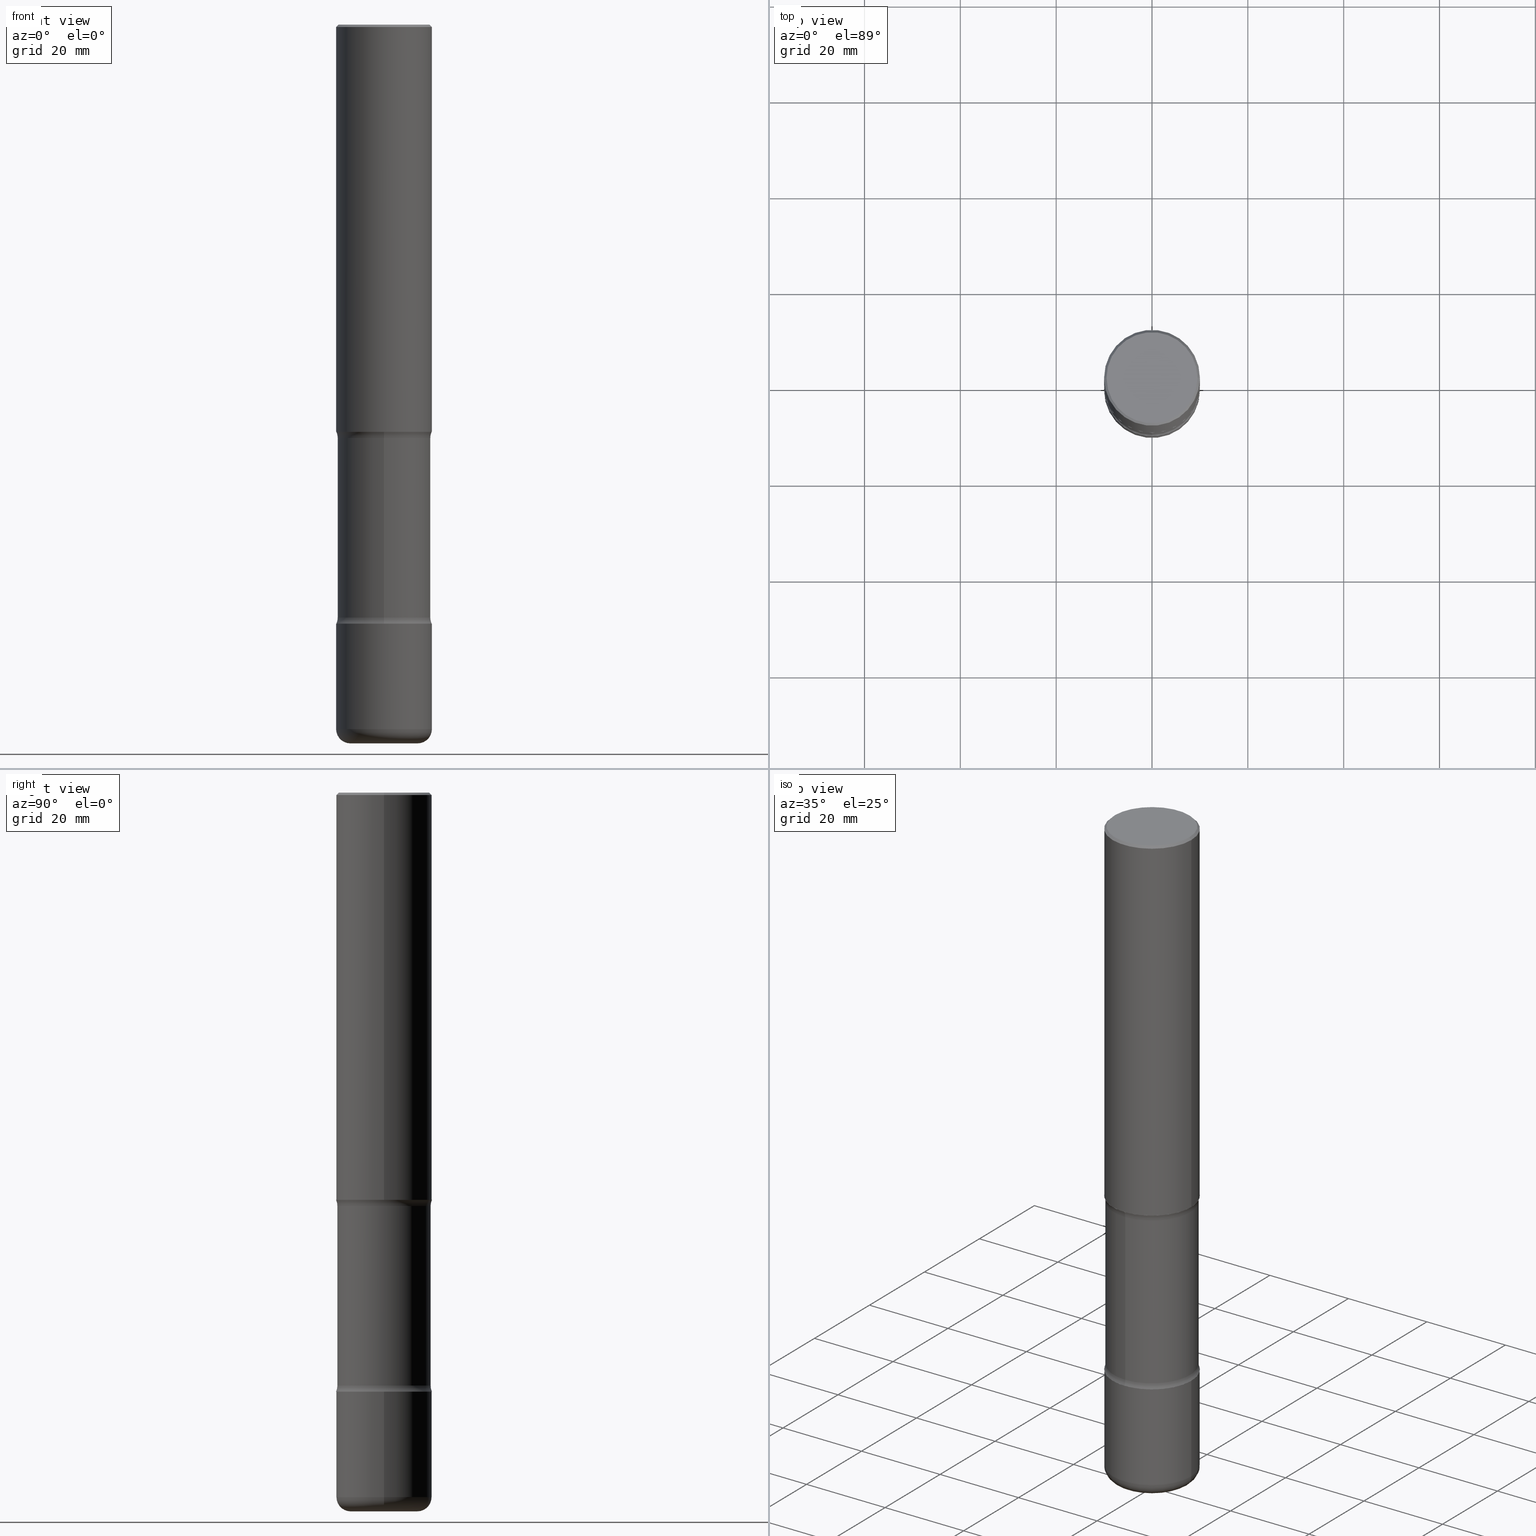
[diagram: canonical four-view strip — front | top / right | iso, engineering-drawing reading convention]
A machine part, canonical four-view strip (front | top / right | iso — engineering-drawing reading convention). The complete STEP part file that produces these views, byte-faithful:
ISO-10303-21;
HEADER;
FILE_DESCRIPTION (( 'STEP AP203' ),
    '1' );
FILE_NAME ('44740.STEP',
    '2024-03-02T02:39:27',
    ( '' ),
    ( '' ),
    'SwSTEP 2.0',
    'SolidWorks 2023',
    '' );
FILE_SCHEMA (( 'CONFIG_CONTROL_DESIGN' ));
ENDSEC;

DATA;
#1 = DIRECTION ( 'NONE',  ( -2.445468806185136597E-29, 3.491481338843145583E-15, 1.000000000000000000 ) ) ;
#2 = DIRECTION ( 'NONE',  ( -2.544829403126025960E-29, 3.349191308769819201E-15, 1.000000000000000000 ) ) ;
#3 = VERTEX_POINT ( 'NONE', #417 ) ;
#4 = DIRECTION ( 'NONE',  ( 6.982962677686265922E-15, 1.000000000000000000, -2.851987987643754903E-15 ) ) ;
#5 = EDGE_CURVE ( 'NONE', #536, #327, #84, .T. ) ;
#6 = ORIENTED_EDGE ( 'NONE', *, *, #450, .F. ) ;
#7 = ADVANCED_FACE ( 'NONE', ( #467 ), #241, .T. ) ;
#8 = EDGE_CURVE ( 'NONE', #152, #125, #71, .T. ) ;
#9 = CIRCLE ( 'NONE', #17, 0.3937000000000002164 ) ;
#10 = AXIS2_PLACEMENT_3D ( 'NONE', #237, #287, #15 ) ;
#11 = EDGE_LOOP ( 'NONE', ( #501, #98, #341, #439 ) ) ;
#12 = ORIENTED_EDGE ( 'NONE', *, *, #279, .F. ) ;
#13 = ADVANCED_FACE ( 'NONE', ( #503 ), #482, .F. ) ;
#14 = DIRECTION ( 'NONE',  ( -2.445468806185136597E-29, 3.491481338843145583E-15, 1.000000000000000000 ) ) ;
#15 = DIRECTION ( 'NONE',  ( 1.000000000000000000, 0.000000000000000000, 0.000000000000000000 ) ) ;
#16 = AXIS2_PLACEMENT_3D ( 'NONE', #427, #82, #40 ) ;
#17 = AXIS2_PLACEMENT_3D ( 'NONE', #302, #83, #170 ) ;
#18 = EDGE_LOOP ( 'NONE', ( #299, #65, #329, #361 ) ) ;
#19 = EDGE_LOOP ( 'NONE', ( #485, #205, #557, #526 ) ) ;
#20 = MANIFOLD_SOLID_BREP ( 'Body-Move/Copy2[2]', #231 ) ;
#21 = VERTEX_POINT ( 'NONE', #380 ) ;
#22 = DIRECTION ( 'NONE',  ( -0.7071067811865456854, 2.468850131082237733E-15, -0.7071067811865493491 ) ) ;
#23 = CONICAL_SURFACE ( 'NONE', #291, 0.3936999999999998279, 0.7853981633974457255 ) ;
#24 = APPROVAL_PERSON_ORGANIZATION ( #232, #92, #50 ) ;
#25 = ORIENTED_EDGE ( 'NONE', *, *, #261, .T. ) ;
#26 = MANIFOLD_SOLID_BREP ( 'Body-Move/Copy2[1]', #425 ) ;
#27 = DESIGN_CONTEXT ( 'detailed design', #118, 'design' ) ;
#28 = ADVANCED_FACE ( 'NONE', ( #539 ), #549, .F. ) ;
#29 = PERSON_AND_ORGANIZATION ( #436, #307 ) ;
#30 = ADVANCED_FACE ( 'NONE', ( #335 ), #338, .F. ) ;
#31 = CARTESIAN_POINT ( 'NONE',  ( 8.027043744955427647E-29, -1.190797149166417528E-14, -3.346399999999999597 ) ) ;
#32 = EDGE_LOOP ( 'NONE', ( #419, #455, #76, #323 ) ) ;
#33 = DIRECTION ( 'NONE',  ( -2.438088387897960049E-29, 3.491481338843145188E-15, 1.000000000000000000 ) ) ;
#34 = ORIENTED_EDGE ( 'NONE', *, *, #60, .F. ) ;
#35 = AXIS2_PLACEMENT_3D ( 'NONE', #221, #227, #4 ) ;
#36 = APPROVAL_PERSON_ORGANIZATION ( #249, #160, #377 ) ;
#37 = COORDINATED_UNIVERSAL_TIME_OFFSET ( 5, 0, .BEHIND. ) ;
#38 = DIRECTION ( 'NONE',  ( 2.445468806185136597E-29, -3.491481338843145583E-15, -1.000000000000000000 ) ) ;
#39 = DIRECTION ( 'NONE',  ( 1.000000000000000000, -6.982962677686269077E-15, 0.000000000000000000 ) ) ;
#40 = DIRECTION ( 'NONE',  ( 6.982962677686266711E-15, 1.000000000000000000, -3.349191308769819201E-15 ) ) ;
#41 = CARTESIAN_POINT ( 'NONE',  ( 1.453951667049523885E-28, -2.047888696993701883E-14, -5.905499999999999972 ) ) ;
#42 = DIRECTION ( 'NONE',  ( 2.544829403126025960E-29, -3.349191308769819201E-15, -1.000000000000000000 ) ) ;
#43 = CARTESIAN_POINT ( 'NONE',  ( -2.087702828670439639E-46, 2.980686340760894400E-32, 8.537024980200822558E-18 ) ) ;
#44 = CYLINDRICAL_SURFACE ( 'NONE', #326, 0.3831500000000001016 ) ;
#45 = LINE ( 'NONE', #472, #358 ) ;
#46 = DATE_TIME_ROLE ( 'classification_date' ) ;
#47 = FACE_OUTER_BOUND ( 'NONE', #140, .T. ) ;
#48 = CIRCLE ( 'NONE', #177, 0.3936999999999998279 ) ;
#49 = CARTESIAN_POINT ( 'NONE',  ( -3.486162057567523591E-15, -0.5081500000000123141, -3.396661292263528864 ) ) ;
#50 = APPROVAL_ROLE ( '' ) ;
#51 = LINE ( 'NONE', #226, #404 ) ;
#52 = DIRECTION ( 'NONE',  ( -2.445468806185136597E-29, 3.491481338843145583E-15, 1.000000000000000000 ) ) ;
#53 = EDGE_CURVE ( 'NONE', #399, #308, #57, .T. ) ;
#54 = ORIENTED_EDGE ( 'NONE', *, *, #210, .F. ) ;
#55 = DIRECTION ( 'NONE',  ( 6.982962677686266711E-15, 1.000000000000000000, -3.349191308769819201E-15 ) ) ;
#56 = ORIENTED_EDGE ( 'NONE', *, *, #468, .T. ) ;
#57 = CIRCLE ( 'NONE', #489, 0.3937000000000002720 ) ;
#58 = AXIS2_PLACEMENT_3D ( 'NONE', #383, #1, #431 ) ;
#59 = CIRCLE ( 'NONE', #246, 0.3937000000000002720 ) ;
#60 = EDGE_CURVE ( 'NONE', #543, #301, #268, .T. ) ;
#61 = ORIENTED_EDGE ( 'NONE', *, *, #8, .F. ) ;
#62 = CARTESIAN_POINT ( 'NONE',  ( 1.415290616891585994E-28, -2.020659910042081941E-14, -5.787399999999999878 ) ) ;
#63 = CC_DESIGN_PERSON_AND_ORGANIZATION_ASSIGNMENT ( #29, #461, ( #538 ) ) ;
#64 = CC_DESIGN_PERSON_AND_ORGANIZATION_ASSIGNMENT ( #547, #167, ( #438 ) ) ;
#65 = ORIENTED_EDGE ( 'NONE', *, *, #515, .T. ) ;
#66 = PRODUCT_DEFINITION_SHAPE ( 'NONE', 'NONE',  #447 ) ;
#67 = ORIENTED_EDGE ( 'NONE', *, *, #515, .F. ) ;
#68 = CALENDAR_DATE ( 2024, 1, 3 ) ;
#69 = CYLINDRICAL_SURFACE ( 'NONE', #166, 0.3937000000000002720 ) ;
#70 = ORIENTED_EDGE ( 'NONE', *, *, #468, .F. ) ;
#71 = LINE ( 'NONE', #79, #187 ) ;
#72 = AXIS2_PLACEMENT_3D ( 'NONE', #348, #397, #316 ) ;
#73 = ADVANCED_FACE ( 'NONE', ( #136 ), #518, .F. ) ;
#74 = CIRCLE ( 'NONE', #278, 0.3937000000000002720 ) ;
#75 = EDGE_CURVE ( 'NONE', #21, #308, #153, .T. ) ;
#76 = ORIENTED_EDGE ( 'NONE', *, *, #150, .T. ) ;
#77 = SECURITY_CLASSIFICATION_LEVEL ( 'unclassified' ) ;
#78 = CARTESIAN_POINT ( 'NONE',  ( -2.664788934784327650E-15, -0.3831500000000122585, -3.396661292263528864 ) ) ;
#79 = CARTESIAN_POINT ( 'NONE',  ( -0.3936999999999998279, 2.679362779428218735E-15, -0.02000000000000008715 ) ) ;
#80 = DATE_TIME_ROLE ( 'creation_date' ) ;
#81 = DIRECTION ( 'NONE',  ( -2.445468806185136597E-29, 3.491481338843145583E-15, 1.000000000000000000 ) ) ;
#82 = DIRECTION ( 'NONE',  ( 2.544829403126025960E-29, -3.349191308769819201E-15, -1.000000000000000000 ) ) ;
#83 = DIRECTION ( 'NONE',  ( -2.445468806185136597E-29, 3.491481338843145583E-15, 1.000000000000000000 ) ) ;
#84 = LINE ( 'NONE', #203, #85 ) ;
#85 = VECTOR ( 'NONE', #115, 39.37007874015748143 ) ;
#86 = EDGE_LOOP ( 'NONE', ( #67, #412, #459, #110 ) ) ;
#87 = CIRCLE ( 'NONE', #35, 0.3831500000000002126 ) ;
#88 = CC_DESIGN_APPROVAL ( #92, ( #438 ) ) ;
#89 = CYLINDRICAL_SURFACE ( 'NONE', #179, 0.3831500000000001016 ) ;
#90 = CARTESIAN_POINT ( 'NONE',  ( 1.444171603492632270E-28, -2.061894304653819197E-14, -5.905499999999999972 ) ) ;
#91 = CARTESIAN_POINT ( 'NONE',  ( 1.190673467460695127E-28, -1.701394328149833235E-14, -4.870938707736469198 ) ) ;
#92 = APPROVAL ( #314, 'UNSPECIFIED' ) ;
#93 = EDGE_CURVE ( 'NONE', #410, #395, #443, .T. ) ;
#94 = DIRECTION ( 'NONE',  ( -1.000000000000000000, 6.982962677686265922E-15, -4.876176775795935793E-29 ) ) ;
#95 = FACE_OUTER_BOUND ( 'NONE', #201, .T. ) ;
#96 = DIRECTION ( 'NONE',  ( -1.000000000000000000, 6.982962677686265922E-15, -4.883557194083112340E-29 ) ) ;
#97 = CARTESIAN_POINT ( 'NONE',  ( 4.890937612370294178E-31, -6.982962677686321191E-17, -0.02000000000000008715 ) ) ;
#98 = ORIENTED_EDGE ( 'NONE', *, *, #219, .T. ) ;
#99 = VECTOR ( 'NONE', #435, 39.37007874015748143 ) ;
#100 = AXIS2_PLACEMENT_3D ( 'NONE', #174, #267, #251 ) ;
#101 =( LENGTH_UNIT ( ) NAMED_UNIT ( * ) SI_UNIT ( $, .METRE. ) );
#102 = CARTESIAN_POINT ( 'NONE',  ( -0.3736999999999998101, 2.644447966039787875E-15, 8.537024980182450727E-18 ) ) ;
#103 = ORIENTED_EDGE ( 'NONE', *, *, #93, .T. ) ;
#104 = CARTESIAN_POINT ( 'NONE',  ( 1.191172866660927853E-28, -1.700679160071063283E-14, -4.870938707736470086 ) ) ;
#105 = EDGE_LOOP ( 'NONE', ( #360, #154 ) ) ;
#106 = AXIS2_PLACEMENT_3D ( 'NONE', #180, #477, #343 ) ;
#107 = CARTESIAN_POINT ( 'NONE',  ( 1.415290616891585994E-28, -2.020659910042081941E-14, -5.787399999999999878 ) ) ;
#108 = APPROVAL_ROLE ( '' ) ;
#109 = EDGE_CURVE ( 'NONE', #536, #117, #305, .T. ) ;
#110 = ORIENTED_EDGE ( 'NONE', *, *, #182, .T. ) ;
#111 = AXIS2_PLACEMENT_3D ( 'NONE', #262, #141, #315 ) ;
#112 = LOCAL_TIME ( 21, 39, 27.00000000000000000, #114 ) ;
#113 = ORIENTED_EDGE ( 'NONE', *, *, #408, .T. ) ;
#114 = COORDINATED_UNIVERSAL_TIME_OFFSET ( 5, 0, .BEHIND. ) ;
#115 = DIRECTION ( 'NONE',  ( 2.544829403126025960E-29, -3.349191308769819201E-15, -1.000000000000000000 ) ) ;
#116 = ADVANCED_FACE ( 'NONE', ( #475 ), #238, .T. ) ;
#117 = VERTEX_POINT ( 'NONE', #556 ) ;
#118 = APPLICATION_CONTEXT ( 'configuration controlled 3d designs of mechanical parts and assemblies' ) ;
#119 = PRODUCT ( '44740', '44740', '', ( #365 ) ) ;
#120 = CARTESIAN_POINT ( 'NONE',  ( 8.154950159346770172E-29, -1.207630617488073123E-14, -3.396661292263530196 ) ) ;
#121 = DIRECTION ( 'NONE',  ( 2.438088387897960049E-29, -3.491481338843145188E-15, -1.000000000000000000 ) ) ;
#122 = AXIS2_PLACEMENT_3D ( 'NONE', #107, #499, #458 ) ;
#123 = DIMENSIONAL_EXPONENTS ( 1.000000000000000000, 0.000000000000000000, 0.000000000000000000, 0.000000000000000000, 0.000000000000000000, 0.000000000000000000, 0.000000000000000000 ) ;
#124 = CARTESIAN_POINT ( 'NONE',  ( 2.749192406205204307E-15, 0.3936999999999830080, -4.921200000000000685 ) ) ;
#125 = VERTEX_POINT ( 'NONE', #131 ) ;
#126 = DIRECTION ( 'NONE',  ( 1.000000000000000000, -6.860497997771530774E-15, 4.842541429922941804E-29 ) ) ;
#127 = ORIENTED_EDGE ( 'NONE', *, *, #449, .F. ) ;
#128 = APPROVAL_DATE_TIME ( #457, #160 ) ;
#129 = FACE_OUTER_BOUND ( 'NONE', #225, .T. ) ;
#130 = CARTESIAN_POINT ( 'NONE',  ( 1.203464108899829379E-28, -1.718227796471488830E-14, -4.921199999999999797 ) ) ;
#131 = CARTESIAN_POINT ( 'NONE',  ( -0.3936999999999998279, 2.679362779428218735E-15, -0.02000000000000008715 ) ) ;
#132 = CIRCLE ( 'NONE', #106, 0.3831500000000000461 ) ;
#133 = AXIS2_PLACEMENT_3D ( 'NONE', #429, #474, #298 ) ;
#134 = CARTESIAN_POINT ( 'NONE',  ( -0.2756000000000003447, -1.824834332066598125E-14, -5.787399999999999878 ) ) ;
#135 = CARTESIAN_POINT ( 'NONE',  ( 8.183516813017940998E-29, -1.168389315230470136E-14, -3.346399999999999597 ) ) ;
#136 = FACE_OUTER_BOUND ( 'NONE', #359, .T. ) ;
#137 = DIRECTION ( 'NONE',  ( -6.982962677686265133E-15, -1.000000000000000000, 0.000000000000000000 ) ) ;
#138 = DIRECTION ( 'NONE',  ( 1.000000000000000000, -6.982962677686261977E-15, 0.000000000000000000 ) ) ;
#139 = EDGE_CURVE ( 'NONE', #446, #543, #200, .T. ) ;
#140 = EDGE_LOOP ( 'NONE', ( #542, #529, #355, #6 ) ) ;
#141 = DIRECTION ( 'NONE',  ( -2.445468806185136597E-29, 3.491481338843145583E-15, 1.000000000000000000 ) ) ;
#142 = DIRECTION ( 'NONE',  ( -2.445468806185136597E-29, 3.491481338843145583E-15, 1.000000000000000000 ) ) ;
#143 = ORIENTED_EDGE ( 'NONE', *, *, #372, .T. ) ;
#144 = CARTESIAN_POINT ( 'NONE',  ( -0.3937000000000002720, -1.589703178188033670E-14, -4.921199999999999797 ) ) ;
#145 = CIRCLE ( 'NONE', #451, 0.3936999999999998279 ) ;
#146 = DIRECTION ( 'NONE',  ( -2.445468806185136597E-29, 3.491481338843145583E-15, 1.000000000000000000 ) ) ;
#147 = VERTEX_POINT ( 'NONE', #265 ) ;
#148 = AXIS2_PLACEMENT_3D ( 'NONE', #424, #440, #137 ) ;
#149 = CARTESIAN_POINT ( 'NONE',  ( -0.3937000000000003830, -1.740919234973330226E-14, -5.787399999999999878 ) ) ;
#150 = EDGE_CURVE ( 'NONE', #410, #3, #415, .T. ) ;
#151 = DATE_AND_TIME ( #534, #318 ) ;
#152 = VERTEX_POINT ( 'NONE', #102 ) ;
#153 = CIRCLE ( 'NONE', #470, 0.1181000000000000383 ) ;
#154 = ORIENTED_EDGE ( 'NONE', *, *, #139, .F. ) ;
#155 = CIRCLE ( 'NONE', #111, 0.3736999999999998101 ) ;
#156 = EDGE_LOOP ( 'NONE', ( #290, #367, #498, #34 ) ) ;
#157 = PERSON_AND_ORGANIZATION_ROLE ( 'design_owner' ) ;
#158 = ADVANCED_FACE ( 'NONE', ( #320 ), #504, .F. ) ;
#159 = CARTESIAN_POINT ( 'NONE',  ( 1.203464108899829379E-28, -1.718227796471488830E-14, -4.921199999999999797 ) ) ;
#160 = APPROVAL ( #420, 'UNSPECIFIED' ) ;
#161 = CARTESIAN_POINT ( 'NONE',  ( 1.453951667049523885E-28, -2.047888696993701883E-14, -5.905499999999999972 ) ) ;
#162 = ORIENTED_EDGE ( 'NONE', *, *, #494, .T. ) ;
#163 = CC_DESIGN_DATE_AND_TIME_ASSIGNMENT ( #275, #46, ( #438 ) ) ;
#164 = DIRECTION ( 'NONE',  ( 1.000000000000000000, -6.982962677686266711E-15, 4.876176775795935793E-29 ) ) ;
#165 = ORIENTED_EDGE ( 'NONE', *, *, #8, .T. ) ;
#166 = AXIS2_PLACEMENT_3D ( 'NONE', #387, #250, #164 ) ;
#167 = PERSON_AND_ORGANIZATION_ROLE ( 'classification_officer' ) ;
#168 = CARTESIAN_POINT ( 'NONE',  ( 0.3937000000000002164, -1.443308555850978615E-14, -3.346399999999999597 ) ) ;
#169 = ORIENTED_EDGE ( 'NONE', *, *, #297, .T. ) ;
#170 = DIRECTION ( 'NONE',  ( 1.000000000000000000, -6.982962677686269866E-15, 0.000000000000000000 ) ) ;
#171 = EDGE_CURVE ( 'NONE', #308, #147, #45, .T. ) ;
#172 = DIRECTION ( 'NONE',  ( 1.000000000000000000, -6.982962677686266711E-15, 0.000000000000000000 ) ) ;
#173 = DIRECTION ( 'NONE',  ( 6.982962677686266711E-15, 1.000000000000000000, -2.851987987643756086E-15 ) ) ;
#174 = CARTESIAN_POINT ( 'NONE',  ( 1.203464108899829379E-28, -1.718227796471488830E-14, -4.921199999999999797 ) ) ;
#175 = DIRECTION ( 'NONE',  ( 6.982962677686265922E-15, 1.000000000000000000, -2.775563112689113145E-15 ) ) ;
#176 = AXIS2_PLACEMENT_3D ( 'NONE', #513, #345, #55 ) ;
#177 = AXIS2_PLACEMENT_3D ( 'NONE', #271, #52, #388 ) ;
#178 = CALENDAR_DATE ( 2024, 1, 3 ) ;
#179 = AXIS2_PLACEMENT_3D ( 'NONE', #41, #386, #514 ) ;
#180 = CARTESIAN_POINT ( 'NONE',  ( 1.190673467460695127E-28, -1.701394328149833235E-14, -4.870938707736469198 ) ) ;
#181 = CYLINDRICAL_SURFACE ( 'NONE', #491, 0.3937000000000000499 ) ;
#182 = EDGE_CURVE ( 'NONE', #395, #327, #437, .T. ) ;
#183 = DIRECTION ( 'NONE',  ( 1.000000000000000000, -6.982962677686266711E-15, 4.876212485538977921E-29 ) ) ;
#184 = CARTESIAN_POINT ( 'NONE',  ( 1.415290616891585994E-28, -2.020659910042081941E-14, -5.787399999999999878 ) ) ;
#185 = FACE_OUTER_BOUND ( 'NONE', #156, .T. ) ;
#186 = ORIENTED_EDGE ( 'NONE', *, *, #93, .F. ) ;
#187 = VECTOR ( 'NONE', #22, 39.37007874015748143 ) ;
#188 = CIRCLE ( 'NONE', #277, 0.3937000000000002720 ) ;
#189 = AXIS2_PLACEMENT_3D ( 'NONE', #555, #126, #502 ) ;
#190 = CARTESIAN_POINT ( 'NONE',  ( -2.700978061722533318E-15, -0.3937000000000174249, -4.921199999999998909 ) ) ;
#191 = ORIENTED_EDGE ( 'NONE', *, *, #210, .T. ) ;
#192 = DIRECTION ( 'NONE',  ( 1.000000000000000000, -6.982962677686263555E-15, 0.000000000000000000 ) ) ;
#193 = CLOSED_SHELL ( 'NONE', ( #407, #236, #30, #13, #531, #73, #158, #366 ) ) ;
#194 = AXIS2_PLACEMENT_3D ( 'NONE', #487, #522, #138 ) ;
#195 = AXIS2_PLACEMENT_3D ( 'NONE', #120, #292, #204 ) ;
#196 = EDGE_CURVE ( 'NONE', #301, #125, #48, .T. ) ;
#197 =( NAMED_UNIT ( * ) PLANE_ANGLE_UNIT ( ) SI_UNIT ( $, .RADIAN. ) );
#198 = EDGE_LOOP ( 'NONE', ( #411, #248 ) ) ;
#199 = ORIENTED_EDGE ( 'NONE', *, *, #530, .T. ) ;
#200 = CIRCLE ( 'NONE', #72, 0.3937000000000002164 ) ;
#201 = EDGE_LOOP ( 'NONE', ( #127, #368 ) ) ;
#202 = CIRCLE ( 'NONE', #516, 0.3937000000000002720 ) ;
#203 = CARTESIAN_POINT ( 'NONE',  ( -2.628599807846017064E-15, -0.3831500000000205852, -5.905499999999998195 ) ) ;
#204 = DIRECTION ( 'NONE',  ( 6.982962677686265922E-15, 1.000000000000000000, -2.851987987643754903E-15 ) ) ;
#205 = ORIENTED_EDGE ( 'NONE', *, *, #53, .T. ) ;
#206 = DIRECTION ( 'NONE',  ( -2.445468806185136877E-29, 3.491481338843145188E-15, 1.000000000000000000 ) ) ;
#207 = PERSON_AND_ORGANIZATION ( #436, #307 ) ;
#208 = CARTESIAN_POINT ( 'NONE',  ( -0.3937000000000002720, 2.797406750687516364E-15, -1.936584745033358137E-29 ) ) ;
#209 = ORIENTED_EDGE ( 'NONE', *, *, #280, .F. ) ;
#210 = EDGE_CURVE ( 'NONE', #536, #410, #87, .T. ) ;
#211 = AXIS2_PLACEMENT_3D ( 'NONE', #406, #229, #400 ) ;
#212 = CYLINDRICAL_SURFACE ( 'NONE', #58, 0.3937000000000000499 ) ;
#213 = DIRECTION ( 'NONE',  ( 2.438088387897960049E-29, -3.491481338843145188E-15, -1.000000000000000000 ) ) ;
#214 = EDGE_LOOP ( 'NONE', ( #56, #162 ) ) ;
#215 = DIRECTION ( 'NONE',  ( 6.982962677686265922E-15, 1.000000000000000000, -2.775563112689113145E-15 ) ) ;
#216 = DIRECTION ( 'NONE',  ( -2.445468806185136877E-29, 3.491481338843145188E-15, 1.000000000000000000 ) ) ;
#217 = ADVANCED_FACE ( 'NONE', ( #185 ), #181, .T. ) ;
#218 = ORIENTED_EDGE ( 'NONE', *, *, #476, .T. ) ;
#219 = EDGE_CURVE ( 'NONE', #442, #21, #244, .T. ) ;
#220 = DIRECTION ( 'NONE',  ( -1.000000000000000000, 7.105427357601001859E-15, 0.000000000000000000 ) ) ;
#221 = CARTESIAN_POINT ( 'NONE',  ( 8.154950159346770172E-29, -1.207630617488073123E-14, -3.396661292263530196 ) ) ;
#222 = AXIS2_PLACEMENT_3D ( 'NONE', #97, #258, #466 ) ;
#223 = DIRECTION ( 'NONE',  ( -2.445468806185136597E-29, 3.491481338843145583E-15, 1.000000000000000000 ) ) ;
#224 = DIRECTION ( 'NONE',  ( -6.982962677686266711E-15, -1.000000000000000000, 3.491481338843145583E-15 ) ) ;
#225 = EDGE_LOOP ( 'NONE', ( #143, #230 ) ) ;
#226 = CARTESIAN_POINT ( 'NONE',  ( -0.3937000000000000499, 2.797406750687514786E-15, -1.936584745033356735E-29 ) ) ;
#227 = DIRECTION ( 'NONE',  ( 2.544829403126025960E-29, -3.349191308769819201E-15, -1.000000000000000000 ) ) ;
#228 = APPLICATION_CONTEXT ( 'configuration controlled 3d designs of mechanical parts and assemblies' ) ;
#229 = DIRECTION ( 'NONE',  ( 2.544829403126025960E-29, -3.349191308769819201E-15, -1.000000000000000000 ) ) ;
#230 = ORIENTED_EDGE ( 'NONE', *, *, #392, .T. ) ;
#231 = CLOSED_SHELL ( 'NONE', ( #217, #295, #324, #289, #509, #325 ) ) ;
#232 = PERSON_AND_ORGANIZATION ( #436, #307 ) ;
#233 = TOROIDAL_SURFACE ( 'NONE', #211, 0.5081500000000001016, 0.1249999999999999306 ) ;
#234 = LOCAL_TIME ( 21, 39, 27.00000000000000000, #37 ) ;
#235 = DIRECTION ( 'NONE',  ( 6.982962677686265922E-15, 1.000000000000000000, -2.775563112689114723E-15 ) ) ;
#236 = ADVANCED_FACE ( 'NONE', ( #312 ), #233, .F. ) ;
#237 = CARTESIAN_POINT ( 'NONE',  ( 0.000000000000000000, 0.000000000000000000, 0.000000000000000000 ) ) ;
#238 = TOROIDAL_SURFACE ( 'NONE', #445, 0.2756000000000003447, 0.1180999999999999966 ) ;
#239 = VECTOR ( 'NONE', #517, 39.37007874015748143 ) ;
#240 = DATE_AND_TIME ( #68, #112 ) ;
#241 = CYLINDRICAL_SURFACE ( 'NONE', #545, 0.3937000000000002720 ) ;
#242 = APPROVAL ( #331, 'UNSPECIFIED' ) ;
#243 = AXIS2_PLACEMENT_3D ( 'NONE', #49, #385, #523 ) ;
#244 = CIRCLE ( 'NONE', #194, 0.2756000000000001782 ) ;
#245 = VERTEX_POINT ( 'NONE', #190 ) ;
#246 = AXIS2_PLACEMENT_3D ( 'NONE', #541, #81, #421 ) ;
#247 = LINE ( 'NONE', #208, #239 ) ;
#248 = ORIENTED_EDGE ( 'NONE', *, *, #219, .F. ) ;
#249 = PERSON_AND_ORGANIZATION ( #436, #307 ) ;
#250 = DIRECTION ( 'NONE',  ( -2.445468806185136597E-29, 3.491481338843145583E-15, 1.000000000000000000 ) ) ;
#251 = DIRECTION ( 'NONE',  ( 6.982962677686265922E-15, 1.000000000000000000, -2.775563112689114723E-15 ) ) ;
#252 = CARTESIAN_POINT ( 'NONE',  ( 4.890937612370294178E-31, -6.982962677686321191E-17, -0.02000000000000008715 ) ) ;
#253 = EDGE_LOOP ( 'NONE', ( #54, #527, #274, #266 ) ) ;
#254 = AXIS2_PLACEMENT_3D ( 'NONE', #311, #2, #553 ) ;
#255 = AXIS2_PLACEMENT_3D ( 'NONE', #104, #433, #560 ) ;
#256 = AXIS2_PLACEMENT_3D ( 'NONE', #135, #33, #310 ) ;
#257 = COORDINATED_UNIVERSAL_TIME_OFFSET ( 5, 0, .BEHIND. ) ;
#258 = DIRECTION ( 'NONE',  ( 2.445468806185136597E-29, -3.491481338843145583E-15, -1.000000000000000000 ) ) ;
#259 = CARTESIAN_POINT ( 'NONE',  ( 1.203464108899829379E-28, -1.718227796471488830E-14, -4.921199999999999797 ) ) ;
#260 = DIRECTION ( 'NONE',  ( 1.000000000000000000, -6.982962677686263555E-15, 0.000000000000000000 ) ) ;
#261 = EDGE_CURVE ( 'NONE', #537, #301, #448, .T. ) ;
#262 = CARTESIAN_POINT ( 'NONE',  ( -2.087702828670439639E-46, 2.980686340760894400E-32, 8.537024980200822558E-18 ) ) ;
#263 = CC_DESIGN_DATE_AND_TIME_ASSIGNMENT ( #240, #80, ( #447 ) ) ;
#264 = DIRECTION ( 'NONE',  ( -2.445468806185136597E-29, 3.491481338843145583E-15, 1.000000000000000000 ) ) ;
#265 = CARTESIAN_POINT ( 'NONE',  ( 0.3937000000000002720, -1.993147037091997467E-14, -4.921199999999999797 ) ) ;
#266 = ORIENTED_EDGE ( 'NONE', *, *, #150, .F. ) ;
#267 = DIRECTION ( 'NONE',  ( 2.544829403126025960E-29, -3.349191308769819201E-15, -1.000000000000000000 ) ) ;
#268 = LINE ( 'NONE', #304, #398 ) ;
#269 = CONICAL_SURFACE ( 'NONE', #222, 0.3936999999999998279, 0.7853981633974457255 ) ;
#270 = ORIENTED_EDGE ( 'NONE', *, *, #171, .F. ) ;
#271 = CARTESIAN_POINT ( 'NONE',  ( 4.890937612370294178E-31, -6.982962677686321191E-17, -0.02000000000000008715 ) ) ;
#272 = ORIENTED_EDGE ( 'NONE', *, *, #261, .F. ) ;
#273 = CARTESIAN_POINT ( 'NONE',  ( 0.2756000000000003447, -2.213110361439115752E-14, -5.787399999999999878 ) ) ;
#274 = ORIENTED_EDGE ( 'NONE', *, *, #319, .T. ) ;
#275 = DATE_AND_TIME ( #550, #234 ) ;
#276 = ORIENTED_EDGE ( 'NONE', *, *, #75, .F. ) ;
#277 = AXIS2_PLACEMENT_3D ( 'NONE', #259, #379, #39 ) ;
#278 = AXIS2_PLACEMENT_3D ( 'NONE', #130, #42, #235 ) ;
#279 = EDGE_CURVE ( 'NONE', #308, #399, #202, .T. ) ;
#280 = EDGE_CURVE ( 'NONE', #327, #395, #132, .T. ) ;
#281 = EDGE_LOOP ( 'NONE', ( #272, #401, #165, #452 ) ) ;
#282 = CIRCLE ( 'NONE', #330, 0.3937000000000004940 ) ;
#283 = CARTESIAN_POINT ( 'NONE',  ( 0.3936999999999998279, -2.770807688499514156E-15, -0.02000000000000008715 ) ) ;
#284 = AXIS2_PLACEMENT_3D ( 'NONE', #300, #462, #548 ) ;
#285 = ORIENTED_EDGE ( 'NONE', *, *, #5, .F. ) ;
#286 = EDGE_LOOP ( 'NONE', ( #479, #113, #70, #270 ) ) ;
#287 = DIRECTION ( 'NONE',  ( 0.000000000000000000, 0.000000000000000000, 1.000000000000000000 ) ) ;
#288 = VERTEX_POINT ( 'NONE', #144 ) ;
#289 = ADVANCED_FACE ( 'NONE', ( #129 ), #351, .F. ) ;
#290 = ORIENTED_EDGE ( 'NONE', *, *, #296, .T. ) ;
#291 = AXIS2_PLACEMENT_3D ( 'NONE', #511, #38, #346 ) ;
#292 = DIRECTION ( 'NONE',  ( 2.544829403126025960E-29, -3.349191308769819201E-15, -1.000000000000000000 ) ) ;
#293 = EDGE_LOOP ( 'NONE', ( #218, #488, #12, #276 ) ) ;
#294 = CC_DESIGN_SECURITY_CLASSIFICATION ( #438, ( #538 ) ) ;
#295 = ADVANCED_FACE ( 'NONE', ( #554 ), #269, .T. ) ;
#296 = EDGE_CURVE ( 'NONE', #543, #446, #9, .T. ) ;
#297 = EDGE_CURVE ( 'NONE', #245, #422, #339, .T. ) ;
#298 = DIRECTION ( 'NONE',  ( 1.000000000000000000, -6.982962677686261977E-15, 0.000000000000000000 ) ) ;
#299 = ORIENTED_EDGE ( 'NONE', *, *, #297, .F. ) ;
#300 = CARTESIAN_POINT ( 'NONE',  ( 8.183516813017940998E-29, -1.168389315230470136E-14, -3.346399999999999597 ) ) ;
#301 = VERTEX_POINT ( 'NONE', #481 ) ;
#302 = CARTESIAN_POINT ( 'NONE',  ( 8.183516813017940998E-29, -1.168389315230470136E-14, -3.346399999999999597 ) ) ;
#303 = CARTESIAN_POINT ( 'NONE',  ( 2.675522149955575835E-15, 0.3831499999999881112, -3.396661292263531085 ) ) ;
#304 = CARTESIAN_POINT ( 'NONE',  ( 0.3937000000000000499, -2.749192406205083217E-15, 1.919750796630860172E-29 ) ) ;
#305 = CIRCLE ( 'NONE', #243, 0.1250000000000000278 ) ;
#306 = VECTOR ( 'NONE', #528, 39.37007874015748143 ) ;
#307 = ORGANIZATION ( 'UNSPECIFIED', 'UNSPECIFIED', '' ) ;
#308 = VERTEX_POINT ( 'NONE', #434 ) ;
#309 = DIRECTION ( 'NONE',  ( 7.105427357601001859E-15, 1.000000000000000000, -3.491481338843145583E-15 ) ) ;
#310 = DIRECTION ( 'NONE',  ( 1.000000000000000000, -6.982962677686265922E-15, 4.876176775795935793E-29 ) ) ;
#311 = CARTESIAN_POINT ( 'NONE',  ( 1.203464108899829379E-28, -1.718227796471488830E-14, -4.921199999999999797 ) ) ;
#312 = FACE_OUTER_BOUND ( 'NONE', #18, .T. ) ;
#313 = ORIENTED_EDGE ( 'NONE', *, *, #5, .T. ) ;
#314 = APPROVAL_STATUS ( 'not_yet_approved' ) ;
#315 = DIRECTION ( 'NONE',  ( 1.000000000000000000, -6.982962677686266711E-15, 4.876212485538977921E-29 ) ) ;
#316 = DIRECTION ( 'NONE',  ( 1.000000000000000000, -6.982962677686269866E-15, 0.000000000000000000 ) ) ;
#317 = AXIS2_PLACEMENT_3D ( 'NONE', #357, #96, #483 ) ;
#318 = LOCAL_TIME ( 21, 39, 27.00000000000000000, #535 ) ;
#319 = EDGE_CURVE ( 'NONE', #117, #3, #282, .T. ) ;
#320 = FACE_OUTER_BOUND ( 'NONE', #86, .T. ) ;
#321 = EDGE_CURVE ( 'NONE', #422, #395, #533, .T. ) ;
#322 = ORIENTED_EDGE ( 'NONE', *, *, #544, .T. ) ;
#323 = ORIENTED_EDGE ( 'NONE', *, *, #449, .T. ) ;
#324 = ADVANCED_FACE ( 'NONE', ( #353 ), #23, .T. ) ;
#325 = ADVANCED_FACE ( 'NONE', ( #47 ), #212, .T. ) ;
#326 = AXIS2_PLACEMENT_3D ( 'NONE', #161, #418, #426 ) ;
#327 = VERTEX_POINT ( 'NONE', #469 ) ;
#328 = APPROVAL_DATE_TIME ( #151, #242 ) ;
#329 = ORIENTED_EDGE ( 'NONE', *, *, #280, .T. ) ;
#330 = AXIS2_PLACEMENT_3D ( 'NONE', #428, #521, #215 ) ;
#331 = APPROVAL_STATUS ( 'not_yet_approved' ) ;
#332 = APPROVAL_PERSON_ORGANIZATION ( #495, #242, #108 ) ;
#333 = EDGE_LOOP ( 'NONE', ( #374, #25, #524, #61 ) ) ;
#334 = APPLICATION_PROTOCOL_DEFINITION ( 'international standard', 'config_control_design', 1994, #118 ) ;
#335 = FACE_OUTER_BOUND ( 'NONE', #253, .T. ) ;
#336 = PLANE ( 'NONE',  #256 ) ;
#337 = DIRECTION ( 'NONE',  ( -2.445468806185136597E-29, 3.491481338843145583E-15, 1.000000000000000000 ) ) ;
#338 = TOROIDAL_SURFACE ( 'NONE', #176, 0.5081500000000002126, 0.1250000000000000555 ) ;
#339 = CIRCLE ( 'NONE', #100, 0.3937000000000002720 ) ;
#340 = FACE_OUTER_BOUND ( 'NONE', #507, .T. ) ;
#341 = ORIENTED_EDGE ( 'NONE', *, *, #75, .T. ) ;
#342 = CC_DESIGN_APPROVAL ( #160, ( #538 ) ) ;
#343 = DIRECTION ( 'NONE',  ( 6.982962677686266711E-15, 1.000000000000000000, -2.851987987643756086E-15 ) ) ;
#344 = FACE_OUTER_BOUND ( 'NONE', #105, .T. ) ;
#345 = DIRECTION ( 'NONE',  ( 2.544829403126025960E-29, -3.349191308769819201E-15, -1.000000000000000000 ) ) ;
#346 = DIRECTION ( 'NONE',  ( -1.000000000000000000, 6.982962677686266711E-15, 0.000000000000000000 ) ) ;
#347 = PLANE ( 'NONE',  #284 ) ;
#348 = CARTESIAN_POINT ( 'NONE',  ( 8.183516813017940998E-29, -1.168389315230470136E-14, -3.346399999999999597 ) ) ;
#349 = AXIS2_PLACEMENT_3D ( 'NONE', #91, #430, #173 ) ;
#350 = LOCAL_TIME ( 21, 39, 27.00000000000000000, #356 ) ;
#351 = PLANE ( 'NONE',  #390 ) ;
#352 = DIRECTION ( 'NONE',  ( 1.000000000000000000, -6.982962677686265922E-15, 4.876176775795935793E-29 ) ) ;
#353 = FACE_OUTER_BOUND ( 'NONE', #281, .T. ) ;
#354 = CARTESIAN_POINT ( 'NONE',  ( 2.675522149955639339E-15, 0.3831499999999796180, -5.905500000000000860 ) ) ;
#355 = ORIENTED_EDGE ( 'NONE', *, *, #60, .T. ) ;
#356 = COORDINATED_UNIVERSAL_TIME_OFFSET ( 5, 0, .BEHIND. ) ;
#357 = CARTESIAN_POINT ( 'NONE',  ( 3.548392484666359174E-15, 0.5081499999999881112, -3.396661292263532417 ) ) ;
#358 = VECTOR ( 'NONE', #216, 39.37007874015748143 ) ;
#359 = EDGE_LOOP ( 'NONE', ( #322, #169 ) ) ;
#360 = ORIENTED_EDGE ( 'NONE', *, *, #296, .F. ) ;
#361 = ORIENTED_EDGE ( 'NONE', *, *, #321, .F. ) ;
#362 =( CONVERSION_BASED_UNIT ( 'INCH', #486 ) LENGTH_UNIT ( ) NAMED_UNIT ( #123 ) );
#363 = FACE_OUTER_BOUND ( 'NONE', #293, .T. ) ;
#364 = CIRCLE ( 'NONE', #471, 0.3736999999999998101 ) ;
#365 = MECHANICAL_CONTEXT ( 'NONE', #228, 'mechanical' ) ;
#366 = ADVANCED_FACE ( 'NONE', ( #551 ), #89, .T. ) ;
#367 = ORIENTED_EDGE ( 'NONE', *, *, #394, .T. ) ;
#368 = ORIENTED_EDGE ( 'NONE', *, *, #319, .F. ) ;
#369 = PERSON_AND_ORGANIZATION ( #436, #307 ) ;
#370 = LOCAL_TIME ( 21, 39, 27.00000000000000000, #257 ) ;
#371 = EDGE_CURVE ( 'NONE', #442, #399, #460, .T. ) ;
#372 = EDGE_CURVE ( 'NONE', #152, #537, #155, .T. ) ;
#373 = DIRECTION ( 'NONE',  ( 2.544829403126025960E-29, -3.349191308769819201E-15, -1.000000000000000000 ) ) ;
#374 = ORIENTED_EDGE ( 'NONE', *, *, #392, .F. ) ;
#375 = PRODUCT_RELATED_PRODUCT_CATEGORY ( 'detail', '', ( #119 ) ) ;
#376 = CARTESIAN_POINT ( 'NONE',  ( 2.675522149955612123E-15, 0.3831499999999830597, -4.870938707736470974 ) ) ;
#377 = APPROVAL_ROLE ( '' ) ;
#378 = AXIS2_PLACEMENT_3D ( 'NONE', #31, #373, #175 ) ;
#379 = DIRECTION ( 'NONE',  ( -2.445468806185136597E-29, 3.491481338843145583E-15, 1.000000000000000000 ) ) ;
#380 = CARTESIAN_POINT ( 'NONE',  ( 0.2756000000000001782, -2.254344756050852692E-14, -5.905499999999999972 ) ) ;
#381 = CIRCLE ( 'NONE', #195, 0.3831500000000002126 ) ;
#382 = CALENDAR_DATE ( 2024, 1, 3 ) ;
#383 = CARTESIAN_POINT ( 'NONE',  ( 0.000000000000000000, 0.000000000000000000, 0.000000000000000000 ) ) ;
#384 = CARTESIAN_POINT ( 'NONE',  ( -0.2756000000000001782, -1.803493980825833276E-14, -5.905499999999999972 ) ) ;
#385 = DIRECTION ( 'NONE',  ( 1.000000000000000000, -6.860497997771530774E-15, 4.842541429922941804E-29 ) ) ;
#386 = DIRECTION ( 'NONE',  ( 2.544829403126025960E-29, -3.349191308769819201E-15, -1.000000000000000000 ) ) ;
#387 = CARTESIAN_POINT ( 'NONE',  ( 0.000000000000000000, 0.000000000000000000, 0.000000000000000000 ) ) ;
#388 = DIRECTION ( 'NONE',  ( 1.000000000000000000, -6.982962677686266711E-15, 0.000000000000000000 ) ) ;
#389 = DIRECTION ( 'NONE',  ( -2.445468806185136877E-29, 3.491481338843145188E-15, 1.000000000000000000 ) ) ;
#390 = AXIS2_PLACEMENT_3D ( 'NONE', #391, #473, #94 ) ;
#391 = CARTESIAN_POINT ( 'NONE',  ( 2.609533152651356226E-15, 0.3736999999999998101, -1.300498063835582617E-15 ) ) ;
#392 = EDGE_CURVE ( 'NONE', #537, #152, #364, .T. ) ;
#393 = DIRECTION ( 'NONE',  ( -2.445468806185136597E-29, 3.491481338843145583E-15, 1.000000000000000000 ) ) ;
#394 = EDGE_CURVE ( 'NONE', #446, #125, #51, .T. ) ;
#395 = VERTEX_POINT ( 'NONE', #376 ) ;
#396 = ADVANCED_FACE ( 'NONE', ( #363 ), #558, .T. ) ;
#397 = DIRECTION ( 'NONE',  ( -2.445468806185136597E-29, 3.491481338843145583E-15, 1.000000000000000000 ) ) ;
#398 = VECTOR ( 'NONE', #389, 39.37007874015748143 ) ;
#399 = VERTEX_POINT ( 'NONE', #149 ) ;
#400 = DIRECTION ( 'NONE',  ( 6.982962677686266711E-15, 1.000000000000000000, -3.349191308769819201E-15 ) ) ;
#401 = ORIENTED_EDGE ( 'NONE', *, *, #372, .F. ) ;
#402 = ADVANCED_FACE ( 'NONE', ( #492 ), #69, .T. ) ;
#403 = UNCERTAINTY_MEASURE_WITH_UNIT (LENGTH_MEASURE( 1.000000000000000082E-05 ), #362, 'distance_accuracy_value', 'NONE');
#404 = VECTOR ( 'NONE', #206, 39.37007874015748143 ) ;
#405 = APPLICATION_PROTOCOL_DEFINITION ( 'international standard', 'config_control_design', 1994, #228 ) ;
#406 = CARTESIAN_POINT ( 'NONE',  ( 1.191172866660927853E-28, -1.700679160071063283E-14, -4.870938707736470086 ) ) ;
#407 = ADVANCED_FACE ( 'NONE', ( #340 ), #44, .T. ) ;
#408 = EDGE_CURVE ( 'NONE', #399, #288, #247, .T. ) ;
#409 = MANIFOLD_SOLID_BREP ( 'Body-Move/Copy2[4]', #193 ) ;
#410 = VERTEX_POINT ( 'NONE', #303 ) ;
#411 = ORIENTED_EDGE ( 'NONE', *, *, #476, .F. ) ;
#412 = ORIENTED_EDGE ( 'NONE', *, *, #544, .F. ) ;
#413 = ADVANCED_FACE ( 'NONE', ( #506 ), #432, .T. ) ;
#414 = AXIS2_PLACEMENT_3D ( 'NONE', #159, #121, #463 ) ;
#415 = CIRCLE ( 'NONE', #317, 0.1250000000000000278 ) ;
#416 = CIRCLE ( 'NONE', #378, 0.3937000000000004940 ) ;
#417 = CARTESIAN_POINT ( 'NONE',  ( 2.749192406205166441E-15, 0.3936999999999886146, -3.346400000000000485 ) ) ;
#418 = DIRECTION ( 'NONE',  ( 2.544829403126025960E-29, -3.349191308769819201E-15, -1.000000000000000000 ) ) ;
#419 = ORIENTED_EDGE ( 'NONE', *, *, #109, .F. ) ;
#420 = APPROVAL_STATUS ( 'not_yet_approved' ) ;
#421 = DIRECTION ( 'NONE',  ( 1.000000000000000000, -6.982962677686269077E-15, 0.000000000000000000 ) ) ;
#422 = VERTEX_POINT ( 'NONE', #124 ) ;
#423 = SHAPE_DEFINITION_REPRESENTATION ( #66, #490 ) ;
#424 = CARTESIAN_POINT ( 'NONE',  ( 3.548392484666395856E-15, 0.5081499999999831152, -4.870938707736471862 ) ) ;
#425 = CLOSED_SHELL ( 'NONE', ( #402, #396, #413, #116, #7, #28 ) ) ;
#426 = DIRECTION ( 'NONE',  ( 6.982962677686266711E-15, 1.000000000000000000, -2.851987987643755691E-15 ) ) ;
#427 = CARTESIAN_POINT ( 'NONE',  ( 8.163356291050437490E-29, -1.206426811583378047E-14, -3.396661292263530640 ) ) ;
#428 = CARTESIAN_POINT ( 'NONE',  ( 8.027043744955427647E-29, -1.190797149166417528E-14, -3.346399999999999597 ) ) ;
#429 = CARTESIAN_POINT ( 'NONE',  ( 1.444171603492632270E-28, -2.061894304653819197E-14, -5.905499999999999972 ) ) ;
#430 = DIRECTION ( 'NONE',  ( 2.544829403126025960E-29, -3.349191308769819201E-15, -1.000000000000000000 ) ) ;
#431 = DIRECTION ( 'NONE',  ( 1.000000000000000000, -6.982962677686265922E-15, 4.876176775795935793E-29 ) ) ;
#432 = PLANE ( 'NONE',  #546 ) ;
#433 = DIRECTION ( 'NONE',  ( 2.544829403126025960E-29, -3.349191308769819201E-15, -1.000000000000000000 ) ) ;
#434 = CARTESIAN_POINT ( 'NONE',  ( 0.3937000000000003830, -2.295579150662590263E-14, -5.787399999999999878 ) ) ;
#435 = DIRECTION ( 'NONE',  ( 2.544829403126025960E-29, -3.349191308769819201E-15, -1.000000000000000000 ) ) ;
#436 = PERSON ( 'UNSPECIFIED', 'UNSPECIFIED', 'UNSPECIFIED', ('UNSPECIFIED'), ('UNSPECIFIED'), ('UNSPECIFIED') ) ;
#437 = CIRCLE ( 'NONE', #349, 0.3831500000000000461 ) ;
#438 = SECURITY_CLASSIFICATION ( '', '', #77 ) ;
#439 = ORIENTED_EDGE ( 'NONE', *, *, #53, .F. ) ;
#440 = DIRECTION ( 'NONE',  ( -1.000000000000000000, 6.982962677686265922E-15, -4.883557194083112340E-29 ) ) ;
#441 = DIRECTION ( 'NONE',  ( 1.000000000000000000, -6.982962677686261977E-15, 4.883557194083110659E-29 ) ) ;
#442 = VERTEX_POINT ( 'NONE', #384 ) ;
#443 = LINE ( 'NONE', #354, #99 ) ;
#444 = EDGE_LOOP ( 'NONE', ( #285, #191, #103, #209 ) ) ;
#445 = AXIS2_PLACEMENT_3D ( 'NONE', #184, #142, #441 ) ;
#446 = VERTEX_POINT ( 'NONE', #464 ) ;
#447 = PRODUCT_DEFINITION ( 'UNKNOWN', '', #538, #27 ) ;
#448 = LINE ( 'NONE', #283, #306 ) ;
#449 = EDGE_CURVE ( 'NONE', #3, #117, #416, .T. ) ;
#450 = EDGE_CURVE ( 'NONE', #125, #301, #145, .T. ) ;
#451 = AXIS2_PLACEMENT_3D ( 'NONE', #252, #264, #172 ) ;
#452 = ORIENTED_EDGE ( 'NONE', *, *, #450, .T. ) ;
#453 = PERSON_AND_ORGANIZATION_ROLE ( 'creator' ) ;
#454 = ORIENTED_EDGE ( 'NONE', *, *, #182, .F. ) ;
#455 = ORIENTED_EDGE ( 'NONE', *, *, #530, .F. ) ;
#456 = CC_DESIGN_PERSON_AND_ORGANIZATION_ASSIGNMENT ( #497, #453, ( #447 ) ) ;
#457 = DATE_AND_TIME ( #382, #370 ) ;
#458 = DIRECTION ( 'NONE',  ( 1.000000000000000000, -6.982962677686261977E-15, 4.883557194083110659E-29 ) ) ;
#459 = ORIENTED_EDGE ( 'NONE', *, *, #321, .T. ) ;
#460 = CIRCLE ( 'NONE', #484, 0.1181000000000000383 ) ;
#461 = PERSON_AND_ORGANIZATION_ROLE ( 'creator' ) ;
#462 = DIRECTION ( 'NONE',  ( 2.544829403126025960E-29, -3.349191308769819201E-15, -1.000000000000000000 ) ) ;
#463 = DIRECTION ( 'NONE',  ( -1.000000000000000000, 6.982962677686265922E-15, -4.876176775795935793E-29 ) ) ;
#464 = CARTESIAN_POINT ( 'NONE',  ( -0.3937000000000002164, -3.079454638853263992E-15, -3.346399999999999597 ) ) ;
#465 = DIRECTION ( 'NONE',  ( 1.000000000000000000, -6.982962677686266711E-15, 4.876176775795935793E-29 ) ) ;
#466 = DIRECTION ( 'NONE',  ( -1.000000000000000000, 6.982962677686266711E-15, 0.000000000000000000 ) ) ;
#467 = FACE_OUTER_BOUND ( 'NONE', #19, .T. ) ;
#468 = EDGE_CURVE ( 'NONE', #147, #288, #188, .T. ) ;
#469 = CARTESIAN_POINT ( 'NONE',  ( -2.664788934784287813E-15, -0.3831500000000170325, -4.870938707736468309 ) ) ;
#470 = AXIS2_PLACEMENT_3D ( 'NONE', #273, #224, #478 ) ;
#471 = AXIS2_PLACEMENT_3D ( 'NONE', #43, #223, #183 ) ;
#472 = CARTESIAN_POINT ( 'NONE',  ( 0.3937000000000002720, -2.749192406205085189E-15, 1.919750796630861293E-29 ) ) ;
#473 = DIRECTION ( 'NONE',  ( 2.438088387897960049E-29, -3.491481338843145188E-15, -1.000000000000000000 ) ) ;
#474 = DIRECTION ( 'NONE',  ( -2.445468806185136597E-29, 3.491481338843145583E-15, 1.000000000000000000 ) ) ;
#475 = FACE_OUTER_BOUND ( 'NONE', #11, .T. ) ;
#476 = EDGE_CURVE ( 'NONE', #21, #442, #496, .T. ) ;
#477 = DIRECTION ( 'NONE',  ( 2.544829403126025960E-29, -3.349191308769819201E-15, -1.000000000000000000 ) ) ;
#478 = DIRECTION ( 'NONE',  ( 1.000000000000000000, -6.982962677686270655E-15, 0.000000000000000000 ) ) ;
#479 = ORIENTED_EDGE ( 'NONE', *, *, #279, .T. ) ;
#480 = DATE_AND_TIME ( #178, #350 ) ;
#481 = CARTESIAN_POINT ( 'NONE',  ( 0.3936999999999998279, -2.770807688499514156E-15, -0.02000000000000008715 ) ) ;
#482 = TOROIDAL_SURFACE ( 'NONE', #16, 0.5081500000000002126, 0.1250000000000000555 ) ;
#483 = DIRECTION ( 'NONE',  ( -6.982962677686269077E-15, -1.000000000000000000, 0.000000000000000000 ) ) ;
#484 = AXIS2_PLACEMENT_3D ( 'NONE', #134, #309, #220 ) ;
#485 = ORIENTED_EDGE ( 'NONE', *, *, #408, .F. ) ;
#486 = LENGTH_MEASURE_WITH_UNIT ( LENGTH_MEASURE( 0.02539999999999999897 ), #101 );
#487 = CARTESIAN_POINT ( 'NONE',  ( 1.444171603492632270E-28, -2.061894304653819197E-14, -5.905499999999999972 ) ) ;
#488 = ORIENTED_EDGE ( 'NONE', *, *, #371, .T. ) ;
#489 = AXIS2_PLACEMENT_3D ( 'NONE', #510, #393, #260 ) ;
#490 = ADVANCED_BREP_SHAPE_REPRESENTATION ( '44740', ( #26, #20, #409, #10 ), #505 ) ;
#491 = AXIS2_PLACEMENT_3D ( 'NONE', #525, #146, #352 ) ;
#492 = FACE_OUTER_BOUND ( 'NONE', #286, .T. ) ;
#493 =( NAMED_UNIT ( * ) SI_UNIT ( $, .STERADIAN. ) SOLID_ANGLE_UNIT ( ) );
#494 = EDGE_CURVE ( 'NONE', #288, #147, #59, .T. ) ;
#495 = PERSON_AND_ORGANIZATION ( #436, #307 ) ;
#496 = CIRCLE ( 'NONE', #133, 0.2756000000000001782 ) ;
#497 = PERSON_AND_ORGANIZATION ( #436, #307 ) ;
#498 = ORIENTED_EDGE ( 'NONE', *, *, #196, .F. ) ;
#499 = DIRECTION ( 'NONE',  ( -2.445468806185136597E-29, 3.491481338843145583E-15, 1.000000000000000000 ) ) ;
#500 = CARTESIAN_POINT ( 'NONE',  ( 0.000000000000000000, 0.000000000000000000, 0.000000000000000000 ) ) ;
#501 = ORIENTED_EDGE ( 'NONE', *, *, #371, .F. ) ;
#502 = DIRECTION ( 'NONE',  ( 6.860497997771528407E-15, 1.000000000000000000, 0.000000000000000000 ) ) ;
#503 = FACE_OUTER_BOUND ( 'NONE', #32, .T. ) ;
#504 = TOROIDAL_SURFACE ( 'NONE', #255, 0.5081500000000001016, 0.1249999999999999306 ) ;
#505 =( GEOMETRIC_REPRESENTATION_CONTEXT ( 3 ) GLOBAL_UNCERTAINTY_ASSIGNED_CONTEXT ( ( #403 ) ) GLOBAL_UNIT_ASSIGNED_CONTEXT ( ( #362, #197, #493 ) ) REPRESENTATION_CONTEXT ( 'NONE', 'WORKASPACE' ) );
#506 = FACE_OUTER_BOUND ( 'NONE', #198, .T. ) ;
#507 = EDGE_LOOP ( 'NONE', ( #199, #313, #454, #186 ) ) ;
#508 = PERSON_AND_ORGANIZATION_ROLE ( 'design_supplier' ) ;
#509 = ADVANCED_FACE ( 'NONE', ( #344 ), #336, .F. ) ;
#510 = CARTESIAN_POINT ( 'NONE',  ( 1.415290616891585994E-28, -2.020659910042081941E-14, -5.787399999999999878 ) ) ;
#511 = CARTESIAN_POINT ( 'NONE',  ( 4.890937612370294178E-31, -6.982962677686321191E-17, -0.02000000000000008715 ) ) ;
#512 = CARTESIAN_POINT ( 'NONE',  ( 0.3736999999999998101, -2.667287895133366781E-15, 8.537024980219274507E-18 ) ) ;
#513 = CARTESIAN_POINT ( 'NONE',  ( 8.163356291050437490E-29, -1.206426811583378047E-14, -3.396661292263530640 ) ) ;
#514 = DIRECTION ( 'NONE',  ( 6.982962677686266711E-15, 1.000000000000000000, -2.851987987643755691E-15 ) ) ;
#515 = EDGE_CURVE ( 'NONE', #245, #327, #559, .T. ) ;
#516 = AXIS2_PLACEMENT_3D ( 'NONE', #62, #14, #192 ) ;
#517 = DIRECTION ( 'NONE',  ( -2.445468806185136877E-29, 3.491481338843145188E-15, 1.000000000000000000 ) ) ;
#518 = PLANE ( 'NONE',  #254 ) ;
#519 = CC_DESIGN_APPROVAL ( #242, ( #447 ) ) ;
#520 = CC_DESIGN_PERSON_AND_ORGANIZATION_ASSIGNMENT ( #207, #508, ( #538 ) ) ;
#521 = DIRECTION ( 'NONE',  ( 2.544829403126025960E-29, -3.349191308769819201E-15, -1.000000000000000000 ) ) ;
#522 = DIRECTION ( 'NONE',  ( -2.445468806185136597E-29, 3.491481338843145583E-15, 1.000000000000000000 ) ) ;
#523 = DIRECTION ( 'NONE',  ( 6.860497997771532351E-15, 1.000000000000000000, 0.000000000000000000 ) ) ;
#524 = ORIENTED_EDGE ( 'NONE', *, *, #196, .T. ) ;
#525 = CARTESIAN_POINT ( 'NONE',  ( 0.000000000000000000, 0.000000000000000000, 0.000000000000000000 ) ) ;
#526 = ORIENTED_EDGE ( 'NONE', *, *, #494, .F. ) ;
#527 = ORIENTED_EDGE ( 'NONE', *, *, #109, .T. ) ;
#528 = DIRECTION ( 'NONE',  ( 0.7071067811865456854, -7.319954787623249734E-15, -0.7071067811865493491 ) ) ;
#529 = ORIENTED_EDGE ( 'NONE', *, *, #139, .T. ) ;
#530 = EDGE_CURVE ( 'NONE', #410, #536, #381, .T. ) ;
#531 = ADVANCED_FACE ( 'NONE', ( #95 ), #347, .F. ) ;
#532 = APPROVAL_DATE_TIME ( #480, #92 ) ;
#533 = CIRCLE ( 'NONE', #148, 0.1249999999999999584 ) ;
#534 = CALENDAR_DATE ( 2024, 1, 3 ) ;
#535 = COORDINATED_UNIVERSAL_TIME_OFFSET ( 5, 0, .BEHIND. ) ;
#536 = VERTEX_POINT ( 'NONE', #78 ) ;
#537 = VERTEX_POINT ( 'NONE', #512 ) ;
#538 = PRODUCT_DEFINITION_FORMATION_WITH_SPECIFIED_SOURCE ( 'ANY', '', #119, .NOT_KNOWN. ) ;
#539 = FACE_OUTER_BOUND ( 'NONE', #214, .T. ) ;
#540 = CC_DESIGN_PERSON_AND_ORGANIZATION_ASSIGNMENT ( #369, #157, ( #119 ) ) ;
#541 = CARTESIAN_POINT ( 'NONE',  ( 1.203464108899829379E-28, -1.718227796471488830E-14, -4.921199999999999797 ) ) ;
#542 = ORIENTED_EDGE ( 'NONE', *, *, #394, .F. ) ;
#543 = VERTEX_POINT ( 'NONE', #168 ) ;
#544 = EDGE_CURVE ( 'NONE', #422, #245, #74, .T. ) ;
#545 = AXIS2_PLACEMENT_3D ( 'NONE', #500, #337, #465 ) ;
#546 = AXIS2_PLACEMENT_3D ( 'NONE', #90, #213, #552 ) ;
#547 = PERSON_AND_ORGANIZATION ( #436, #307 ) ;
#548 = DIRECTION ( 'NONE',  ( 6.982962677686265922E-15, 1.000000000000000000, -3.349191308769819201E-15 ) ) ;
#549 = PLANE ( 'NONE',  #414 ) ;
#550 = CALENDAR_DATE ( 2024, 1, 3 ) ;
#551 = FACE_OUTER_BOUND ( 'NONE', #444, .T. ) ;
#552 = DIRECTION ( 'NONE',  ( -1.000000000000000000, 6.982962677686265922E-15, -4.876176775795935793E-29 ) ) ;
#553 = DIRECTION ( 'NONE',  ( -6.982962677686265922E-15, -1.000000000000000000, 3.349191308769819201E-15 ) ) ;
#554 = FACE_OUTER_BOUND ( 'NONE', #333, .T. ) ;
#555 = CARTESIAN_POINT ( 'NONE',  ( -3.486162057567485725E-15, -0.5081500000000171990, -4.870938707736468309 ) ) ;
#556 = CARTESIAN_POINT ( 'NONE',  ( -2.700978061722575127E-15, -0.3937000000000123734, -3.346399999999998265 ) ) ;
#557 = ORIENTED_EDGE ( 'NONE', *, *, #171, .T. ) ;
#558 = TOROIDAL_SURFACE ( 'NONE', #122, 0.2756000000000003447, 0.1180999999999999966 ) ;
#559 = CIRCLE ( 'NONE', #189, 0.1249999999999999584 ) ;
#560 = DIRECTION ( 'NONE',  ( 6.982962677686266711E-15, 1.000000000000000000, -3.349191308769819201E-15 ) ) ;
ENDSEC;
END-ISO-10303-21;
